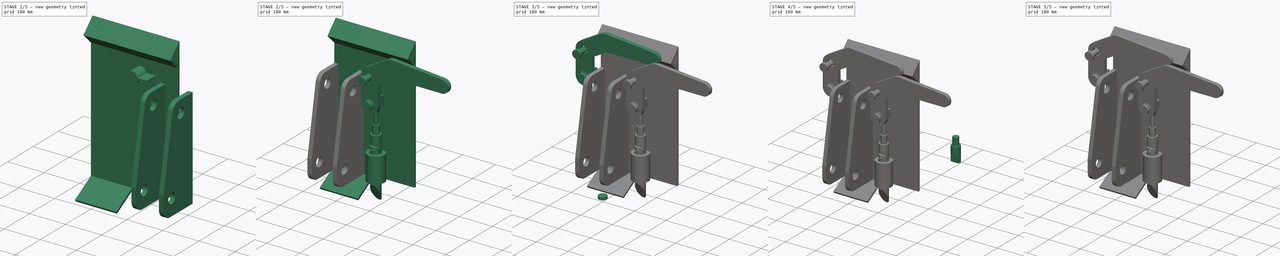
[diagram: build sequence overview — one tinted view per stage of 5, left to right]
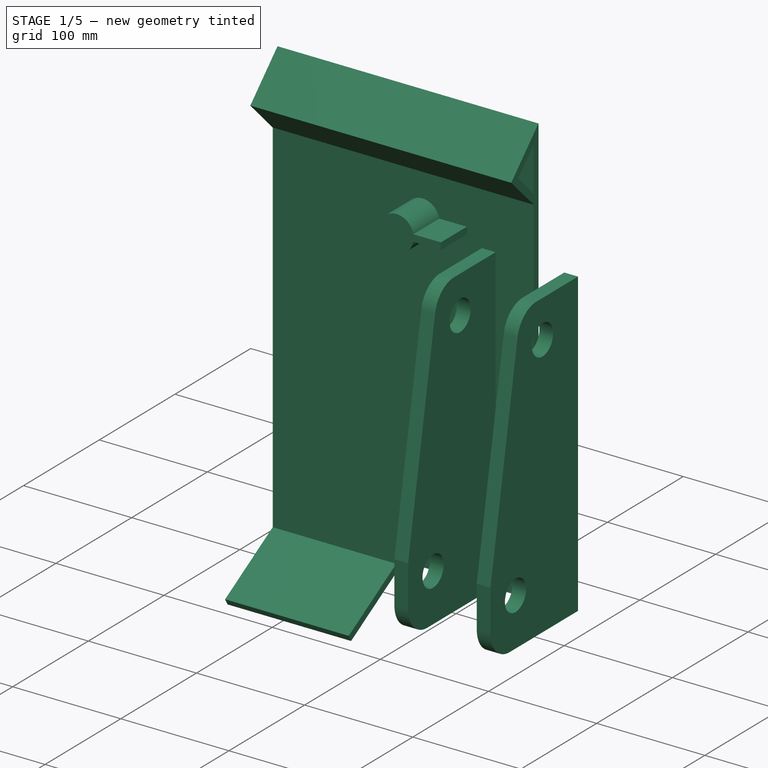
[diagram: stage 1 of 5 — iso view after this stage's code; geometry added in this stage tinted green]
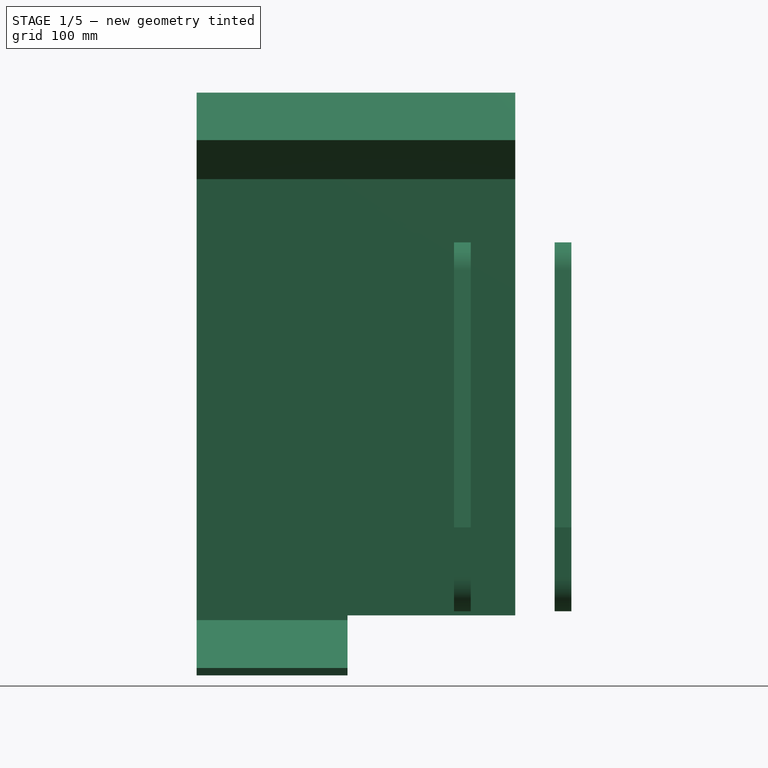
[diagram: stage 1 of 5 — front view after this stage's code; geometry added in this stage tinted green]
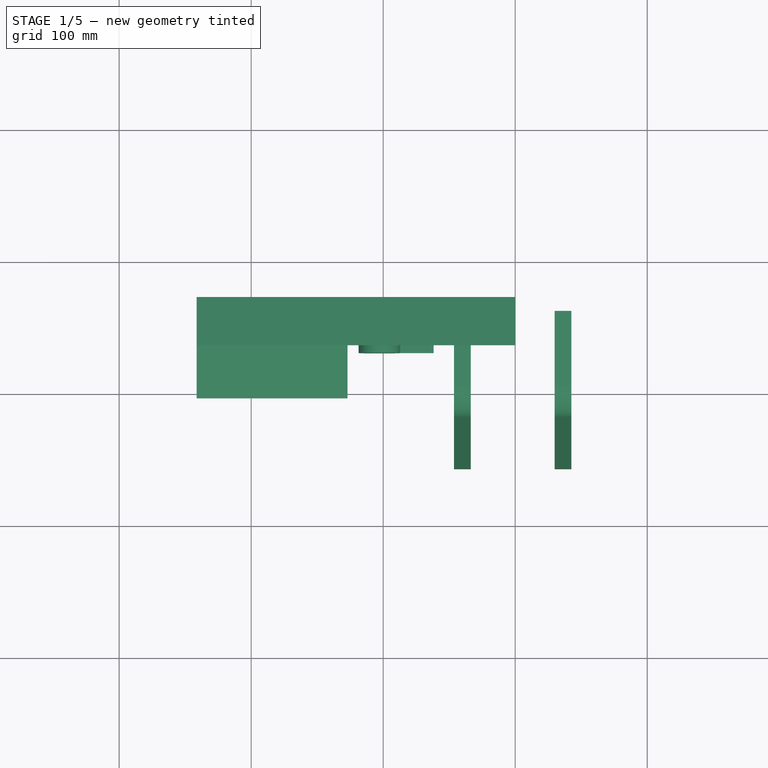
[diagram: stage 1 of 5 — top view after this stage's code; geometry added in this stage tinted green]
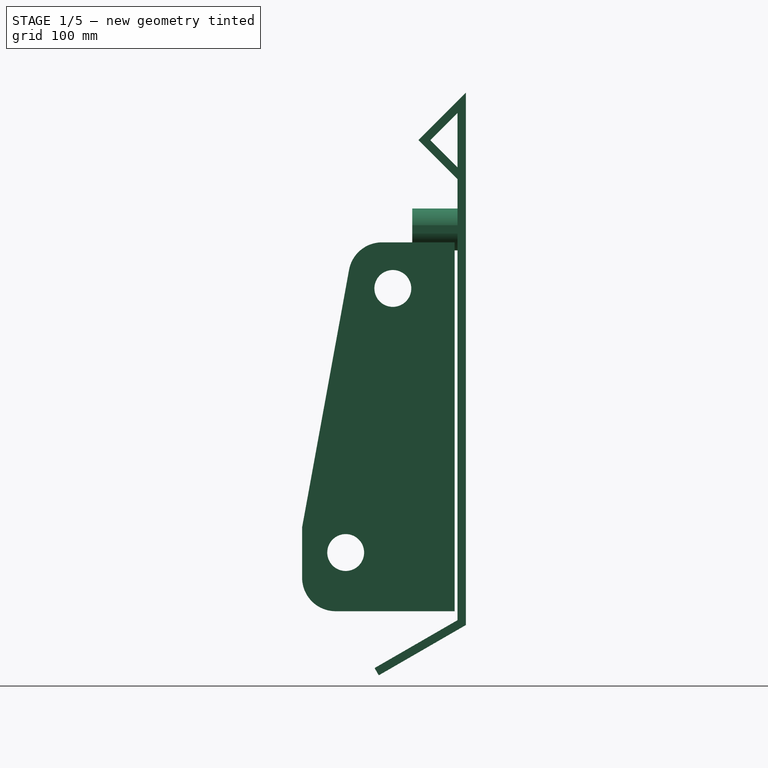
[diagram: stage 1 of 5 — right view after this stage's code; geometry added in this stage tinted green]
FCSTD DOCUMENT  (FreeCAD 0.16R6712 (Git))
Label: Bobcat QA Male side 8
License: All rights reserved
LicenseURL: http://en.wikipedia.org/wiki/All_rights_reserved
objects: Sketcher::SketchObject×20, PartDesign::Pocket×13, Part::Feature×11, Part::Cylinder×9, App::DocumentObjectGroup×8, Part::MultiFuse×7, Part::FeaturePython×7, PartDesign::Pad×6, Part::Box×2, PartDesign::Fillet×2, App::FeaturePython×1
note: 96 computed .brp shape members not serialized (recipe doc carries the construction recipe); baked Part::Feature solids carry a one-line shape summary decoded from their .brp

FEATURE [Sketcher::SketchObject] Sketch
  Placement = pos=(0,0,0) rot=(0.57735,0.57735,0.57735;2.0944rad)
  sketch-geometry (10):
    g0: LineSegment StartX=0 StartY=0 StartZ=0 EndX=65.9911 EndY=38.1 EndZ=0
    g1: LineSegment StartX=65.9911 StartY=38.1 StartZ=0 EndX=65.9911 EndY=441.325 EndZ=0
    g2: LineSegment StartX=65.9911 StartY=441.325 StartZ=0 EndX=30.0701 EndY=405.404 EndZ=0
    g3: LineSegment StartX=39.0504 StartY=405.404 StartZ=0 EndX=59.6411 EndY=425.995 EndZ=0
    g4: LineSegment StartX=59.6411 StartY=425.995 StartZ=0 EndX=59.6411 EndY=41.7662 EndZ=0
    g5: LineSegment StartX=59.6411 StartY=41.7662 StartZ=0 EndX=-3.175 EndY=5.49926 EndZ=0
    g6: LineSegment StartX=-3.175 StartY=5.49926 StartZ=0 EndX=0 EndY=0 EndZ=0
    g7: LineSegment StartX=30.0701 StartY=405.404 StartZ=0 EndX=59.6411 EndY=375.833 EndZ=0
    g8: LineSegment StartX=59.6411 StartY=375.833 StartZ=0 EndX=59.6411 EndY=384.813 EndZ=0
    g9: LineSegment StartX=59.6411 StartY=384.813 StartZ=0 EndX=39.0504 EndY=405.404 EndZ=0
  constraints (29):
    c: Coincident(g-1,g0)
    c: Coincident(g0,g1)
    c: Vertical(g1)
    c: Coincident(g1,g2)
    c: Coincident(g3,g4)
    c: Vertical(g4)
    c: Coincident(g4,g5)
    c: Coincident(g5,g6)
    c: Coincident(g6,g0)
    c: Coincident(g2,g7)
    c: Coincident(g7,g8)
    c: Vertical(g8)
    c: Coincident(g8,g9)
    c: Coincident(g9,g3)
    c: Angle(g0,g-2) = 1.0472
    c: Parallel(g5,g0)
    c: Perpendicular(g0,g6)
    c: Distance(g6) = 6.35
    c: Angle(g2,g1) = 0.785398
    c: Distance(g3,g1) = 6.35
    c: Parallel(g2,g3)
    c: Distance(g3,g2) = 6.35
    c: Parallel(g7,g9)
    c: Distance(g8,g7) = 6.35
    c: Distance(g1) = 403.225
    c: Distance(g0) = 76.2
    c: Angle(g7,g2) = 1.5708
    c: PointOnObject(g7,g4)
    c: Distance(g2) = 50.8
FEATURE [PartDesign::Pad] Pad
  Length = 241.3
  Length2 = 100
  Placement = pos=(0,0,0) rot=(0.57735,0.57735,0.57735;2.0944rad)
  Reversed = true
  Sketch = -> Sketch
  Type = 0
FEATURE [PartDesign::Pocket] Pocket
  Length = 81.2
  Placement = pos=(0,0,0) rot=(0.57735,0.57735,0.57735;2.0944rad)
  Sketch = -> Sketch001
  Type = 0
FEATURE [Sketcher::SketchObject] Sketch004
  ExternalGeometry = -> [Pocket]
  Placement = pos=(0,59.6411,0) rot=(0.57735,0.57735,-0.57735;2.0944rad)
  Support = -> Pocket [Face6]
  sketch-geometry (4):
    g0: ArcOfCircle CenterX=-337.733 CenterY=-102.743 CenterZ=0 NormalX=0 NormalY=0 NormalZ=1 Radius=15.875 StartAngle=1.77215 EndAngle=7.65262
    g1: LineSegment StartX=-340.908 StartY=-87.1887 StartZ=0 EndX=-340.908 EndY=-61.7887 EndZ=0
    g2: LineSegment StartX=-340.908 StartY=-61.7887 StartZ=0 EndX=-334.558 EndY=-61.7887 EndZ=0
    g3: LineSegment StartX=-334.558 StartY=-61.7887 StartZ=0 EndX=-334.558 EndY=-87.1887 EndZ=0
  constraints (13):
    c: Coincident(g1,g2)
    c: Coincident(g2,g3)
    c: Coincident(g3,g0)
    c: Vertical(g3)
    c: Coincident(g0,g1)
    c: Vertical(g1)
    c: Horizontal(g2)
    c: Radius(g0) = 15.875
    c: Distance(g2) = 6.35
    c: Equal(g3,g1)
    c: Distance(g3) = 25.4
    c: Distance(g0,g-3) = 38.1
    c: DistanceY(g-1,g0) = -102.743
FEATURE [PartDesign::Pad] Pad001
  Length = 34.29
  Length2 = 100
  Placement = pos=(0,0,0) rot=(0.57735,0.57735,0.57735;2.0944rad)
  Sketch = -> Sketch004
  Type = 0
FEATURE [Sketcher::SketchObject] Sketch021
  Placement = pos=(0,0,0) rot=(1,0,0;1.5708rad)
  sketch-geometry (7):
    g0: LineSegment StartX=0 StartY=0 StartZ=0 EndX=0 EndY=279.414 EndZ=0
    g1: LineSegment StartX=115.57 StartY=63.5 StartZ=0 EndX=115.57 EndY=0 EndZ=0
    g2: LineSegment StartX=115.57 StartY=0 StartZ=0 EndX=0 EndY=0 EndZ=0
    g3: Circle CenterX=46.847 CenterY=244.489 CenterZ=0 NormalX=0 NormalY=0 NormalZ=1 Radius=13.97
    g4: Circle CenterX=82.55 CenterY=44.45 CenterZ=0 NormalX=0 NormalY=0 NormalZ=1 Radius=13.97
    g5: LineSegment StartX=115.57 StartY=63.5 StartZ=0 EndX=76.2 EndY=279.414 EndZ=0
    g6: LineSegment StartX=76.2 StartY=279.414 StartZ=0 EndX=0 EndY=279.414 EndZ=0
  constraints (20):
    c: Coincident(g-1,g0)
    c: Vertical(g1)
    c: Coincident(g1,g2)
    c: Coincident(g2,g0)
    c: Horizontal(g2)
    c: Distance(g2) = 115.57
    c: Radius(g3) = 13.97
    c: DistanceX(g4) = 82.55
    c: Radius(g4) = 13.97
    c: DistanceY(g4) = 44.45
    c: Distance(g3,g4) = 203.2
    c: Coincident(g5,g6)
    c: Coincident(g6,g0)
    c: PointOnObject(g0,g-2)
    c: Horizontal(g6)
    c: Distance(g6) = 76.2
    c: Distance(g3,g6) = 34.925
    c: Coincident(g1,g5)
    c: Distance(g1) = 63.5
    c: Distance(g3,g0) = 46.847
FEATURE [PartDesign::Pad] Pad006
  Length = 12.7
  Length2 = 100
  Placement = pos=(0,0,0) rot=(1,0,0;1.5708rad)
  Sketch = -> Sketch021
  Type = 0
FEATURE [Part::FeaturePython] Clone003  label="Clone of Pad006"  # Draft clone (typed FeaturePython)
  Objects = -> [Pad006]
  Placement = pos=(377.028,99.6872,-218.392) rot=(1,0,0;1.5708rad)
  Scale = (1,1,1)
FEATURE [Part::FeaturePython] Clone004  label="Clone of Pad007"  # Draft clone (typed FeaturePython)
  Objects = -> [Pad006]
  Placement = pos=(377.028,23.4872,-218.392) rot=(1,0,0;1.5708rad)
  Scale = (1,1,1)
FEATURE [Part::MultiFuse] Fusion004003003
  Shapes = -> [Clone003,Clone004]
FEATURE [Part::FeaturePython] Clone006  label="Clone of Fusion004003003"  # Draft clone (typed FeaturePython)
  Objects = -> [Fusion004003003]
  Placement = pos=(-57.15,434.517,266.944) rot=(0,0,-1;1.5708rad)
  Scale = (1,1,1)
FEATURE [PartDesign::Fillet] Fillet002002
  Base = -> Clone006 [Edge32,Edge11,Edge23,Edge2]
  Placement = pos=(-57.15,434.517,266.944) rot=(0,0,-1;1.5708rad)
  Radius = 25.4
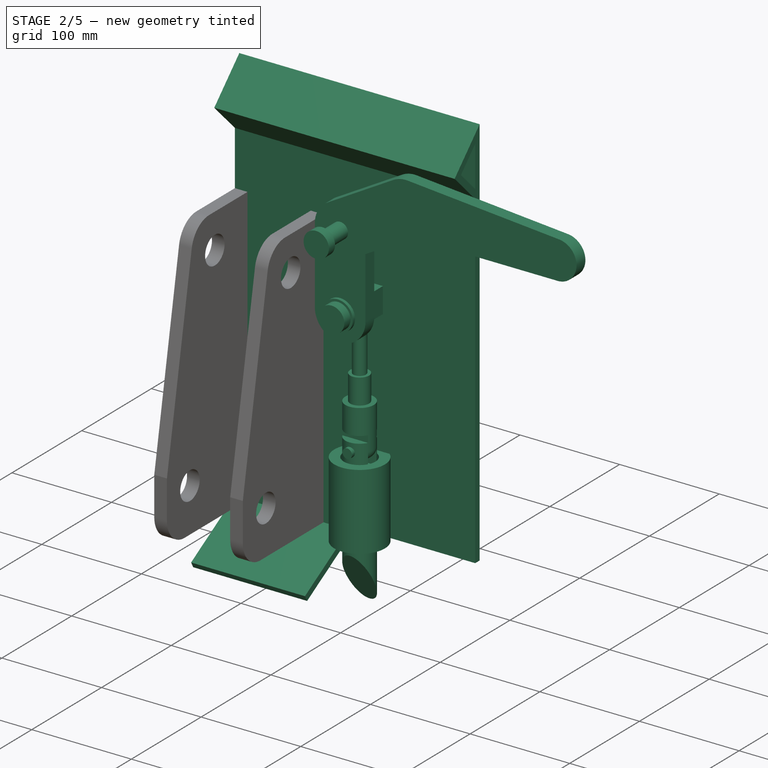
[diagram: stage 2 of 5 — iso view after this stage's code; geometry added in this stage tinted green]
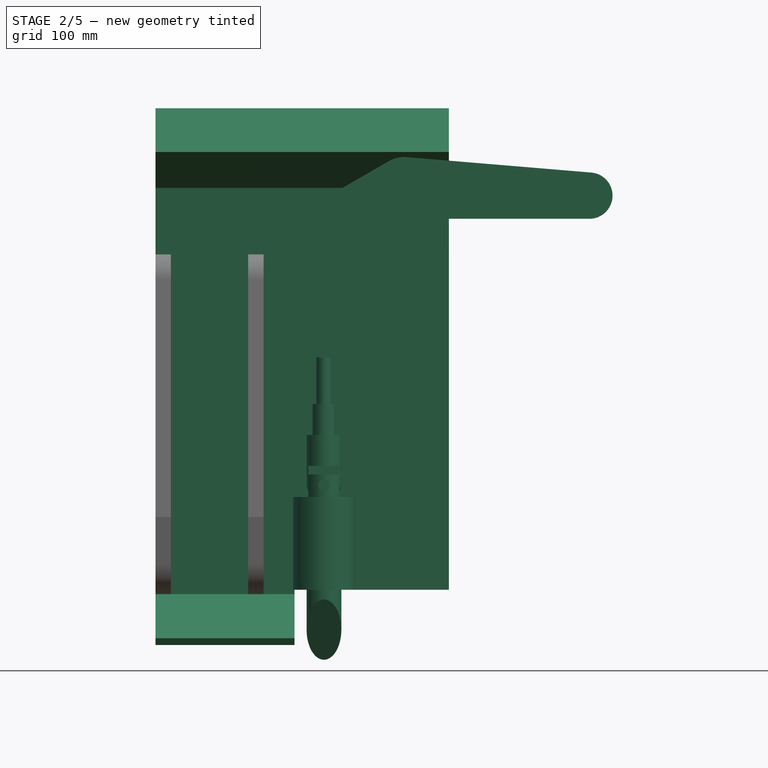
[diagram: stage 2 of 5 — front view after this stage's code; geometry added in this stage tinted green]
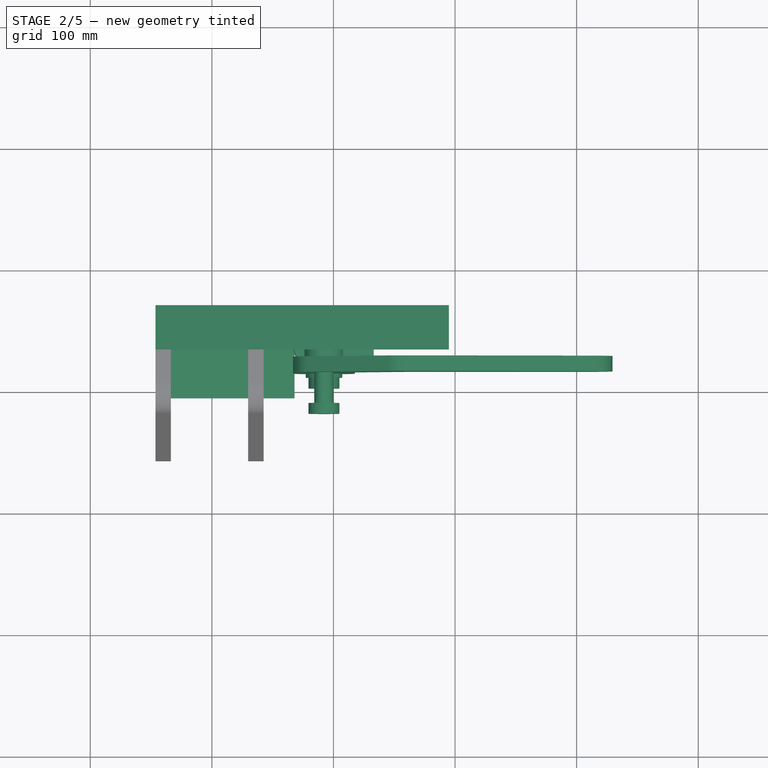
[diagram: stage 2 of 5 — top view after this stage's code; geometry added in this stage tinted green]
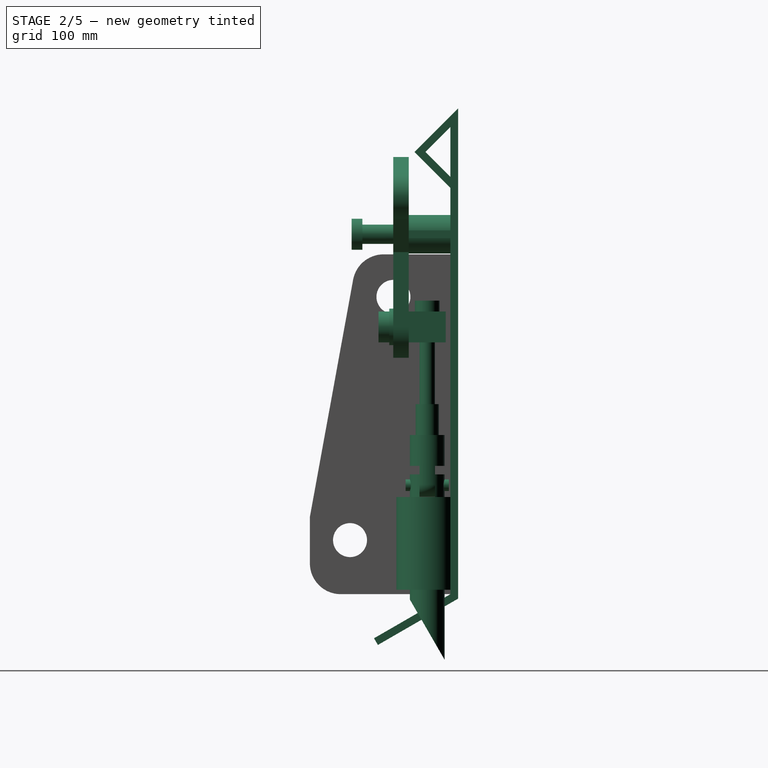
[diagram: stage 2 of 5 — right view after this stage's code; geometry added in this stage tinted green]
FEATURE [Sketcher::SketchObject] Sketch001
  Placement = pos=(0,65.9911,0) rot=(0.57735,0.57735,0.57735;4.18879rad)
  Support = -> Pad [Face7]
  sketch-geometry (4):
    g0: LineSegment StartX=45.433 StartY=0 StartZ=0 EndX=0 EndY=0 EndZ=0
    g1: LineSegment StartX=0 StartY=0 StartZ=0 EndX=0 EndY=-127 EndZ=0
    g2: LineSegment StartX=0 StartY=-127 StartZ=0 EndX=45.433 EndY=-127 EndZ=0
    g3: LineSegment StartX=45.433 StartY=-127 StartZ=0 EndX=45.433 EndY=0 EndZ=0
  constraints (12):
    c: Coincident(g0,g1)
    c: Coincident(g1,g2)
    c: Coincident(g2,g3)
    c: Coincident(g3,g0)
    c: Horizontal(g0)
    c: Horizontal(g2)
    c: Vertical(g1)
    c: Vertical(g3)
    c: PointOnObject(g1,g-2)
    c: Coincident(g0,g-1)
    c: Distance(g0) = 45.433
    c: Distance(g1) = 127
FEATURE [Part::Cylinder] Cylinder
  Angle = 360
  Height = 76.2
  Placement = pos=(-73.279,46.8215,91.9553) rot=(0,0,1;1.5708rad)
  Radius = 25.4
FEATURE [Sketcher::SketchObject] Sketch003
  Placement = pos=(-73.279,46.8215,168.155) rot=(0,0,1;1.5708rad)
  Support = -> Cylinder [Face2]
  sketch-geometry (1):
    g0: Circle CenterX=0 CenterY=0 CenterZ=0 NormalX=0 NormalY=0 NormalZ=1 Radius=15.875
  constraints (1):
    c: Radius(g0) = 15.875
FEATURE [PartDesign::Pocket] Pocket001
  Length = 76.2
  Placement = pos=(-73.279,46.8215,91.9553) rot=(0,0,1;1.5708rad)
  Sketch = -> Sketch003
  Type = 0
FEATURE [App::DocumentObjectGroup] Group006  label="Fasteners"
  Group = -> [Fusion002,Fusion,Cylinder004,Fusion003,Washer]
FEATURE [PartDesign::Pad] Pad005
  Length = 12.7
  Length2 = 100
  Placement = pos=(0,0,0) rot=(0.57735,0.57735,0.57735;2.0944rad)
  Sketch = -> Sketch005
  Type = 0
FEATURE [Sketcher::SketchObject] Sketch006
  ExternalGeometry = -> [Pad005]
  Placement = pos=(0,12.6511,0) rot=(0.57735,0.57735,-0.57735;2.0944rad)
  Support = -> Pad005 [Face21]
  sketch-geometry (1):
    g0: Circle CenterX=-337.733 CenterY=-102.743 CenterZ=0 NormalX=0 NormalY=0 NormalZ=1 Radius=7.9375
  constraints (2):
    c: Radius(g0) = 7.9375
    c: Coincident(g0,g-3)
FEATURE [PartDesign::Pocket] Pocket014
  Length = 38.1
  Placement = pos=(0,0,0) rot=(0.57735,0.57735,0.57735;2.0944rad)
  Sketch = -> Sketch006
  Type = 0
FEATURE [App::DocumentObjectGroup] Group001  label="QA male plate"
  Group = -> [Pad,Cylinder,Pocket,Pad001,Sketch019,Pad005,Pocket001,Pocket014]
FEATURE [Part::FeaturePython] Clone  label="Clone of Pocket001"  # Draft clone (typed FeaturePython)
  Objects = -> [Pocket001]
  Placement = pos=(-159.893,38.4395,52.2189) rot=(0,0,1;1.5708rad)
  Scale = (1,1,1)
FEATURE [Part::Feature] Pocket003001  label="Pocket015"
  Placement = pos=(-460.982,31.5815,72.096) rot=(1,0,0;1.5708rad)
  shape: bbox 262.7 x 12.7 x 165.1 mm, 14 faces (baked)
FEATURE [Part::Feature] Pocket011001  label="Pocket016"
  Placement = pos=(-87.5665,32.534,34.1703) rot=(0,0,1;0rad)
  shape: bbox 28.58 x 28.58 x 152.4 mm, 12 faces (baked)
FEATURE [Part::Feature] Pocket013001  label="Pocket017"
  Placement = pos=(-85.979,31.5815,295.155) rot=(0,0,1;0rad)
  shape: bbox 25.4 x 43.18 x 25.4 mm, 11 faces (baked)
FEATURE [Part::Feature] Fillet001
  Placement = pos=(-73.279,46.8215,168.155) rot=(0,0,1;0rad)
  shape: bbox 28.58 x 28.58 x 76.2 mm, 17 faces (baked)
FEATURE [Part::Feature] Fusion002001  label="Shoulder bolt001"
  Placement = pos=(-73.279,-19.2185,384.055) rot=(1,0,0;1.5708rad)
  shape: bbox 25.4 x 72.39 x 25.4 mm, 5 faces (baked)
FEATURE [Part::Feature] Cylinder004001  label="Spring pin001"
  Placement = pos=(-73.279,64.6015,177.68) rot=(1,0,0;1.5708rad)
  shape: bbox 9.525 x 35.56 x 9.525 mm, 3 faces (baked)
FEATURE [Part::Feature] Fusion003001  label="Pivot 1 bolt001"
  Placement = pos=(-73.279,19.3915,307.855) rot=(0,0.707107,0.707107;3.14159rad)
  shape: bbox 25.4 x 21.59 x 25.4 mm, 5 faces (baked)
FEATURE [Part::Feature] Washer001  label="M16-Washer001"
  Placement = pos=(-73.279,18.8815,307.855) rot=(1,0,0;1.5708rad)
  shape: bbox 30 x 3.3 x 30 mm, 4 faces (baked)
FEATURE [Part::Feature] Fusion004002  label="Spring bolt001"
  Placement = pos=(-73.279,46.8215,320.555) rot=(0,0,1;0rad)
  shape: bbox 20.32 x 20.32 x 85.09 mm, 5 faces (baked)
FEATURE [Part::Feature] Fusion004003001  label="Fusion004004"
  Placement = pos=(-86.614,-8.382,-39.5364) rot=(0,0,1;0rad)
  shape: bbox 262.7 x 80.01 x 413.4 mm, 71 faces, 2 solids (baked)
FEATURE [Part::FeaturePython] Clone002  label="Clone of Pocket014"  # Draft clone (typed FeaturePython)
  Objects = -> [Pocket014]
  Placement = pos=(-57.15,-2.15164,6.78592) rot=(0.57735,0.57735,0.57735;2.0944rad)
  Scale = (1,1,1)
FEATURE [Part::MultiFuse] Fusion004003002  label="Fusion004"
  Shapes = -> [Clone002,Fusion004003001,Clone]
FEATURE [Part::FeaturePython] Clone005  label="Clone of Fusion004"  # Draft clone (typed FeaturePython)
  Objects = -> [Fusion004003002]
  Placement = pos=(252.087,0,0) rot=(0,0,1;0rad)
  Scale = (1,1,1)
FEATURE [Part::MultiFuse] Fusion004003004
  Shapes = -> [Fillet002002,Clone005]
FEATURE [Part::Feature] Fusion004003004001  label="MQA"
  Placement = pos=(-533.4,0,0) rot=(0,0,1;0rad)
  shape: bbox 375.9 x 121.9 x 453.5 mm, 114 faces (baked)
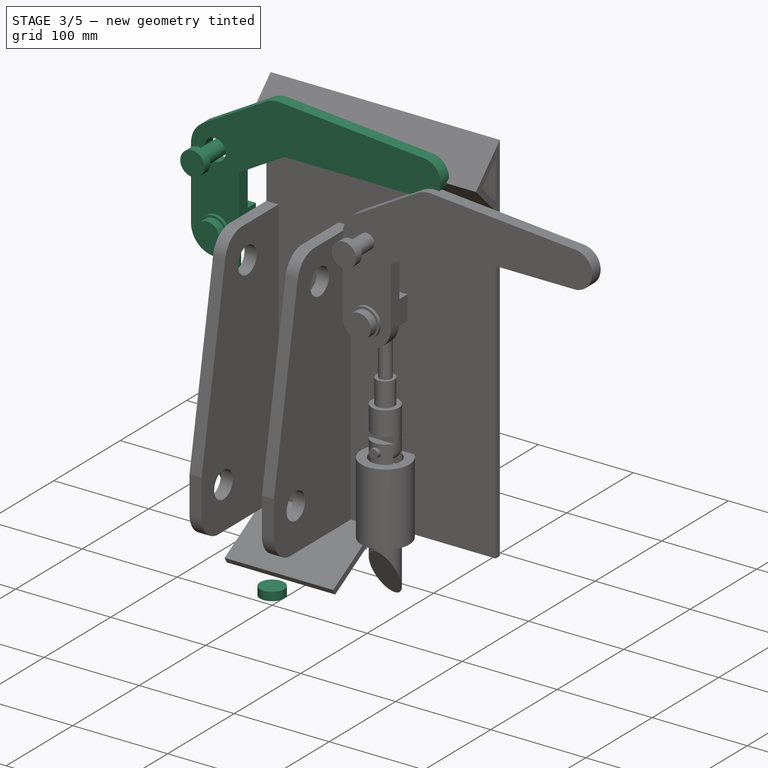
[diagram: stage 3 of 5 — iso view after this stage's code; geometry added in this stage tinted green]
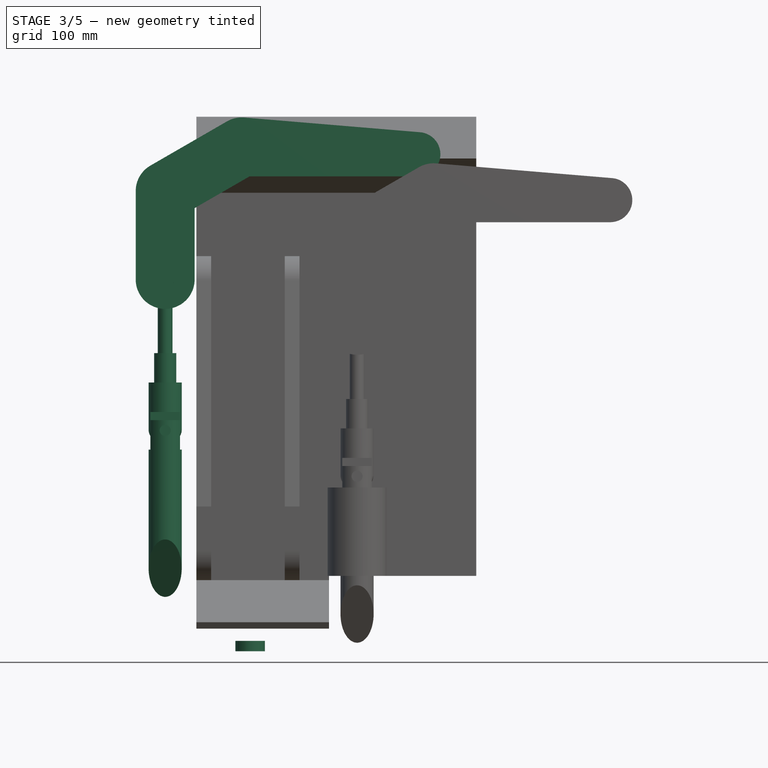
[diagram: stage 3 of 5 — front view after this stage's code; geometry added in this stage tinted green]
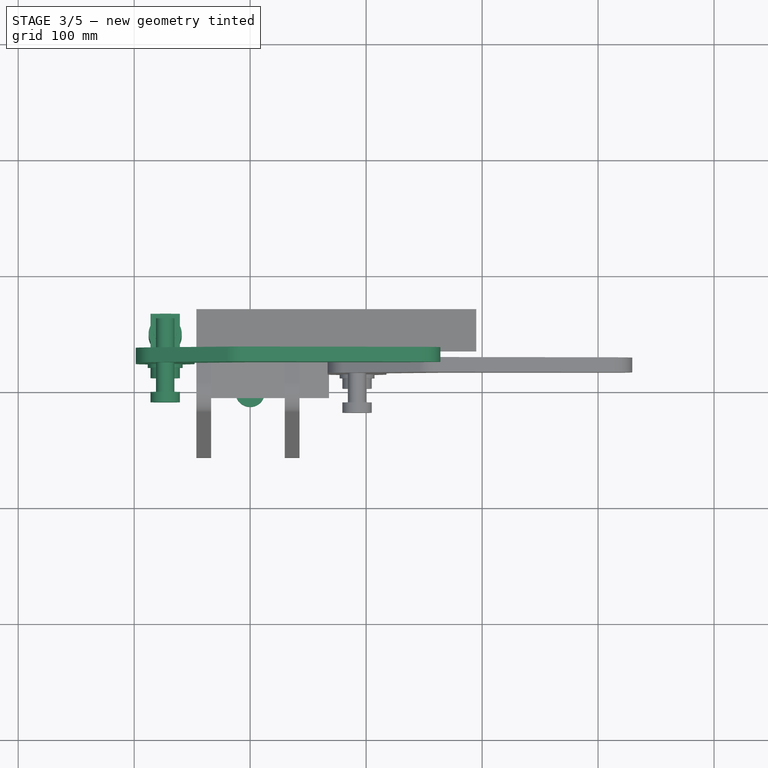
[diagram: stage 3 of 5 — top view after this stage's code; geometry added in this stage tinted green]
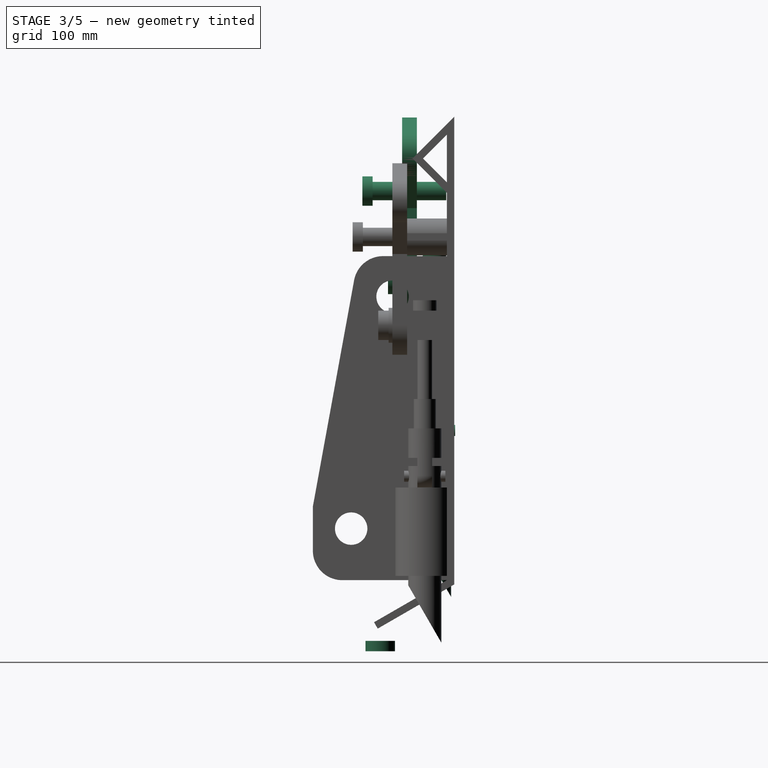
[diagram: stage 3 of 5 — right view after this stage's code; geometry added in this stage tinted green]
FEATURE [App::DocumentObjectGroup] Group  label="Hand Lever"
  Group = -> [Pad003,Pocket003]
FEATURE [Part::Box] Box  label="Cube"
  Height = 25.4
  Length = 25.4
  Placement = pos=(199.004,71.2268,181.94) rot=(0,0,1;0rad)
  Width = 30.48
FEATURE [Sketcher::SketchObject] Sketch010
  Placement = pos=(199.004,71.2268,181.94) rot=(1,0,0;1.5708rad)
  Support = -> Box [Face3]
  sketch-geometry (1):
    g0: Circle CenterX=12.7 CenterY=12.7 CenterZ=0 NormalX=0 NormalY=0 NormalZ=1 Radius=11.1125
  constraints (3):
    c: DistanceY(g-1,g0) = 12.7
    c: DistanceX(g-2,g0) = 12.7
    c: Radius(g0) = 11.1125
FEATURE [PartDesign::Pad] Pad004
  Length = 12.7
  Length2 = 100
  Placement = pos=(199.004,71.2268,181.94) rot=(0,0,1;0rad)
  Sketch = -> Sketch010
  Type = 0
FEATURE [Sketcher::SketchObject] Sketch011
  Placement = pos=(199.004,71.2268,207.34) rot=(0,0,1;0rad)
  Support = -> Pad004 [Face3]
  sketch-geometry (1):
    g0: Circle CenterX=12.7 CenterY=15.24 CenterZ=0 NormalX=0 NormalY=0 NormalZ=1 Radius=6.35
  constraints (3):
    c: DistanceY(g-1,g0) = 15.24
    c: DistanceX(g-2,g0) = 12.7
    c: Radius(g0) = 6.35
FEATURE [PartDesign::Pocket] Pocket004
  Length = 25.4
  Placement = pos=(-85.979,11.1271,292.581) rot=(0,0,1;0rad)
  Sketch = -> Sketch011
  Type = 0
FEATURE [Part::Cylinder] Cylinder006
  Angle = 360
  Height = 8.89
  Placement = pos=(0,0,-12.7) rot=(0,0,1;0rad)
  Radius = 12.7
FEATURE [Sketcher::SketchObject] Sketch020
  Placement = pos=(-85.979,18.8815,295.156) rot=(1,0,0;1.5708rad)
  Support = -> Pocket004 [Face9]
  sketch-geometry (1):
    g0: Circle CenterX=12.7 CenterY=12.6992 CenterZ=0 NormalX=0 NormalY=0 NormalZ=1 Radius=7.9375
  constraints (1):
    c: Radius(g0) = 7.9375
FEATURE [PartDesign::Pocket] Pocket013
  Length = 12.7
  Placement = pos=(-85.979,31.5815,295.155) rot=(0,0,1;0rad)
  Sketch = -> Sketch020
  Type = 0
FEATURE [App::DocumentObjectGroup] Group004  label="Pivot 1"
  Group = -> [Box,Pad004,Pocket004,Pocket013]
FEATURE [App::DocumentObjectGroup] Group002  label="Pin group"
  Group = -> [Group003,Group004,Group005]
FEATURE [Part::Cylinder] Cylinder007
  Angle = 360
  Height = 12.7
  Placement = pos=(0,0,-3.81) rot=(0,0,1;0rad)
  Radius = 7.9375
FEATURE [Part::Cylinder] Cylinder008
  Angle = 360
  Height = 8.89
  Placement = pos=(0,0,-12.7) rot=(0,0,1;0rad)
  Radius = 12.7
FEATURE [Part::MultiFuse] Fusion003  label="Pivot 1 bolt"
  Placement = pos=(-73.279,19.3915,307.855) rot=(0,0.707107,0.707107;3.14159rad)
  Shapes = -> [Cylinder007,Cylinder008]
FEATURE [Part::FeaturePython] Washer  label="M16-Washer"  # Fasteners workbench fastener (typed FeaturePython)
  Placement = pos=(-73.279,18.8815,307.855) rot=(1,0,0;1.5708rad)
  diameter = 11
  invert = false
  matchOuter = false
  offset = 0
  type = 0
FEATURE [App::DocumentObjectGroup] Group007  label="Arm connector"
  Group = -> [Pad006,Fusion004003003]
FEATURE [Part::MultiFuse] Fusion004003  label="Fusion003"
  Shapes = -> [Pocket003001,Pocket013001,Fusion002001,Cylinder004001,Fillet001,Fusion004002,Pocket011001,Washer001,Fusion003001]
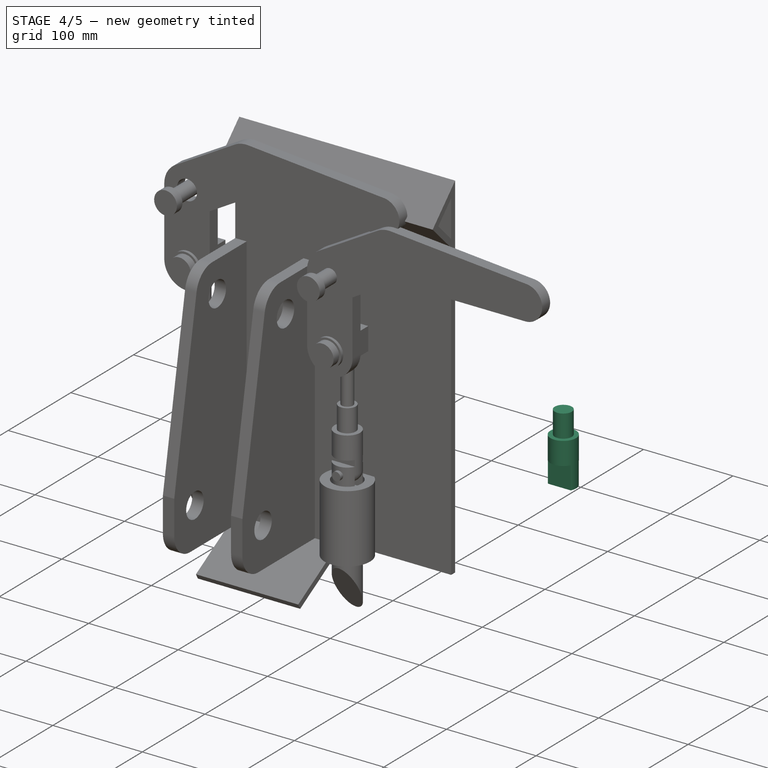
[diagram: stage 4 of 5 — iso view after this stage's code; geometry added in this stage tinted green]
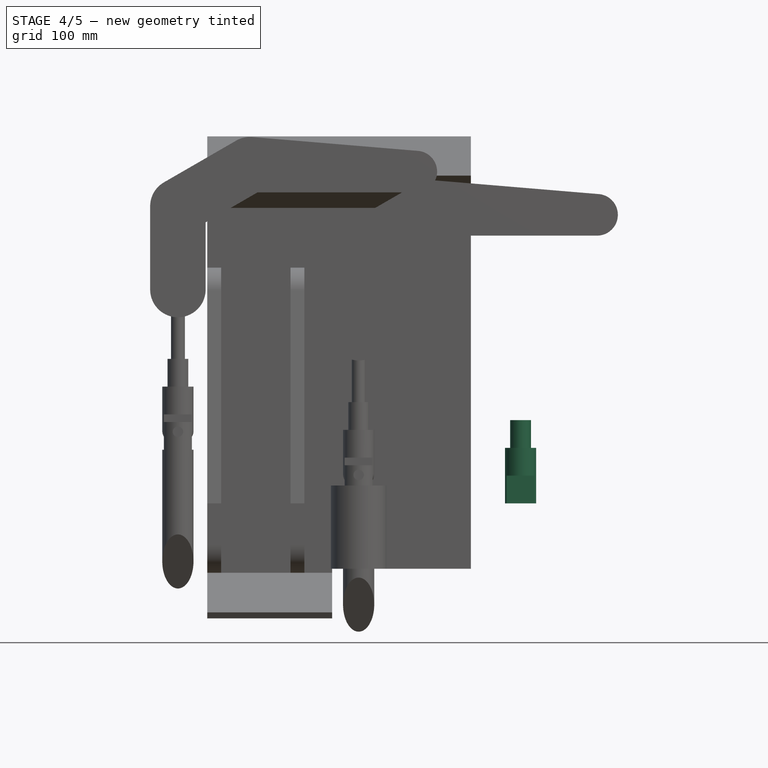
[diagram: stage 4 of 5 — front view after this stage's code; geometry added in this stage tinted green]
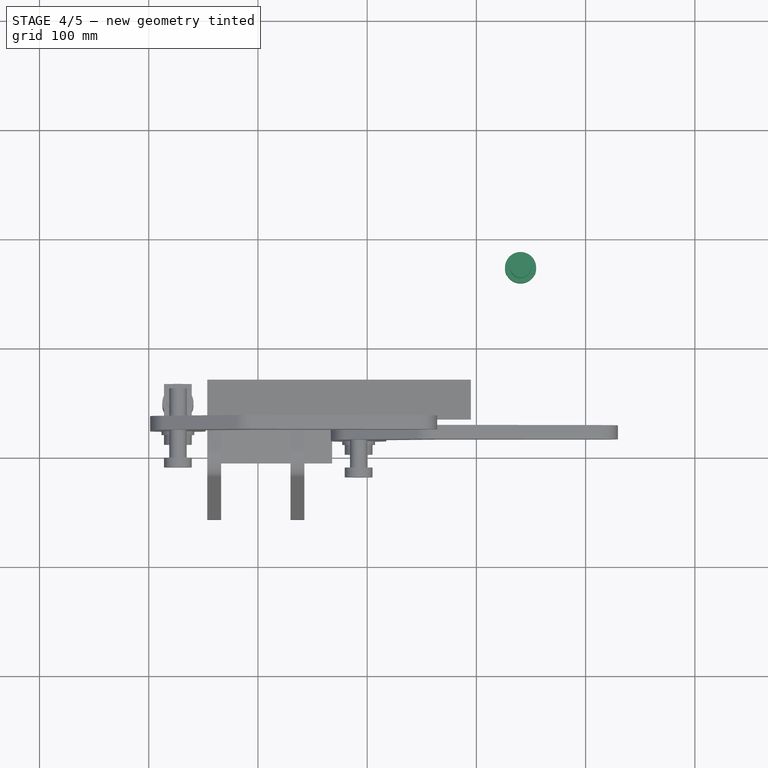
[diagram: stage 4 of 5 — top view after this stage's code; geometry added in this stage tinted green]
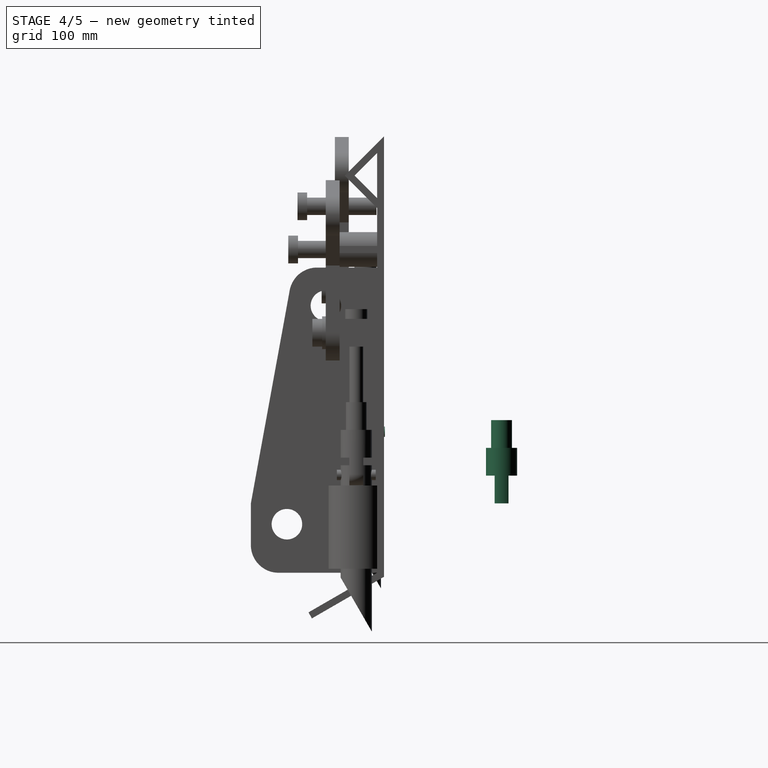
[diagram: stage 4 of 5 — right view after this stage's code; geometry added in this stage tinted green]
FEATURE [Part::Cylinder] Cylinder001
  Angle = 360
  Height = 76.2
  Placement = pos=(240.443,171.452,112.065) rot=(0,0,1;0rad)
  Radius = 14.2875
FEATURE [Sketcher::SketchObject] Sketch012
  Placement = pos=(240.443,171.452,112.065) rot=(1,0,0;3.14159rad)
  Support = -> Cylinder001 [Face3]
  sketch-geometry (8):
    g0: LineSegment StartX=-19.05 StartY=6.35 StartZ=0 EndX=19.05 EndY=6.35 EndZ=0
    g1: LineSegment StartX=19.05 StartY=6.35 StartZ=0 EndX=19.05 EndY=-6.35 EndZ=0
    g2: LineSegment StartX=19.05 StartY=-6.35 StartZ=0 EndX=-19.05 EndY=-6.35 EndZ=0
    g3: LineSegment StartX=-19.05 StartY=-6.35 StartZ=0 EndX=-19.05 EndY=6.35 EndZ=0
    g4: LineSegment StartX=-25.4 StartY=19.05 StartZ=0 EndX=25.4 EndY=19.05 EndZ=0
    g5: LineSegment StartX=25.4 StartY=19.05 StartZ=0 EndX=25.4 EndY=-19.05 EndZ=0
    g6: LineSegment StartX=25.4 StartY=-19.05 StartZ=0 EndX=-25.4 EndY=-19.05 EndZ=0
    g7: LineSegment StartX=-25.4 StartY=-19.05 StartZ=0 EndX=-25.4 EndY=19.05 EndZ=0
  constraints (16):
    c: Coincident(g0,g1)
    c: Coincident(g1,g2)
    c: Coincident(g2,g3)
    c: Coincident(g3,g0)
    c: Horizontal(g0)
    c: Horizontal(g2)
    c: Vertical(g1)
    c: Vertical(g3)
    c: Coincident(g4,g5)
    c: Coincident(g5,g6)
    c: Coincident(g6,g7)
    c: Coincident(g7,g4)
    c: Horizontal(g4)
    c: Horizontal(g6)
    c: Vertical(g5)
    c: Vertical(g7)
FEATURE [PartDesign::Pocket] Pocket005
  Length = 25.4
  Placement = pos=(240.443,171.452,112.065) rot=(0,0,1;0rad)
  Sketch = -> Sketch012
  Type = 0
FEATURE [Sketcher::SketchObject] Sketch013
  Placement = pos=(240.443,171.452,188.265) rot=(0,0,1;0rad)
  Support = -> Pocket005 [Face7]
  sketch-geometry (2):
    g0: Circle CenterX=0 CenterY=0 CenterZ=0 NormalX=0 NormalY=0 NormalZ=1 Radius=9.525
    g1: Circle CenterX=0 CenterY=0 CenterZ=0 NormalX=0 NormalY=0 NormalZ=1 Radius=19.05
  constraints (2):
    c: Coincident(g0,g-1)
    c: Coincident(g1,g-1)
FEATURE [PartDesign::Pocket] Pocket006
  Length = 25.4
  Placement = pos=(240.443,171.452,112.065) rot=(0,0,1;0rad)
  Sketch = -> Sketch013
  Type = 0
FEATURE [App::DocumentObjectGroup] Group003  label="Pin (Wedge)"
  Group = -> [Box001,Pocket008,Pocket009,Pocket010,Pocket011]
FEATURE [App::DocumentObjectGroup] Group005  label="Pivot 2"
  Group = -> [Cylinder001,Pocket005,Pocket006,Pocket007,Fillet]
FEATURE [Part::Cylinder] Cylinder002
  Angle = 360
  Height = 76.2
  Placement = pos=(0,0,-76.2) rot=(0,0,1;0rad)
  Radius = 6.35
FEATURE [Part::Cylinder] Cylinder003
  Angle = 360
  Height = 8.89
  Radius = 10.16
FEATURE [Part::MultiFuse] Fusion  label="Spring bolt"
  Placement = pos=(-73.279,46.8215,320.555) rot=(0,0,1;0rad)
  Shapes = -> [Cylinder002,Cylinder003]
FEATURE [Sketcher::SketchObject] Sketch019
  Placement = pos=(0,17.4771,47.3393) rot=(1,0,0;1.5708rad)
  sketch-geometry (1):
    g0: Circle CenterX=-73.279 CenterY=334.141 CenterZ=0 NormalX=0 NormalY=0 NormalZ=1 Radius=26.7803
FEATURE [Part::Cylinder] Cylinder004  label="Spring pin"
  Angle = 360
  Height = 35.56
  Placement = pos=(-73.279,64.6015,177.68) rot=(1,0,0;1.5708rad)
  Radius = 4.7625
FEATURE [Part::Cylinder] Cylinder005
  Angle = 360
  Height = 63.5
  Placement = pos=(0,0,-76.2) rot=(0,0,1;0rad)
  Radius = 7.9375
FEATURE [App::FeaturePython] circularEdgeConstraint07  # a2plus constraint (typed FeaturePython)
  Object1 = Cylinder006
  Object2 = Cylinder005
  SubElement1 = Edge3
  SubElement2 = Edge1
  Type = circularEdge
  directionConstraint = 0
  lockRotation = false
  offset = 0
FEATURE [Part::MultiFuse] Fusion002  label="Shoulder bolt"
  Placement = pos=(-73.279,-19.2185,384.055) rot=(1,0,0;1.5708rad)
  Shapes = -> [Cylinder005,Cylinder006,circularEdgeConstraint07]
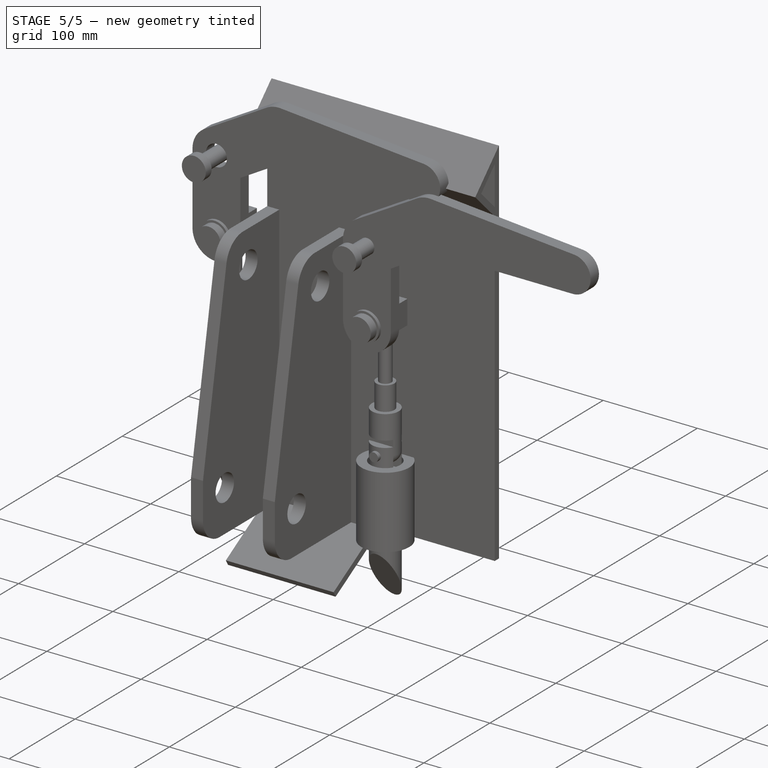
[diagram: stage 5 of 5 — iso view after this stage's code; geometry added in this stage tinted green]
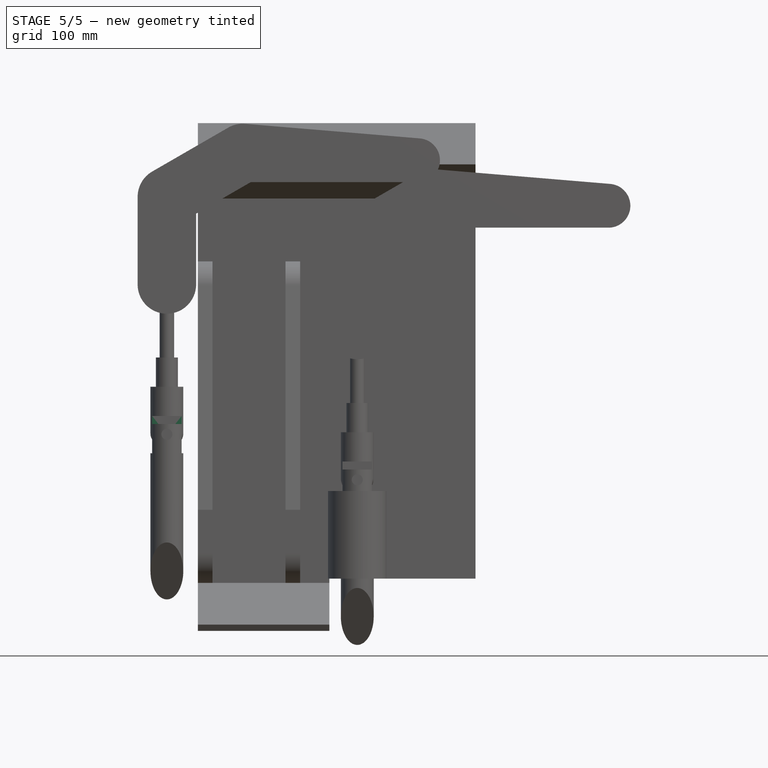
[diagram: stage 5 of 5 — front view after this stage's code; geometry added in this stage tinted green]
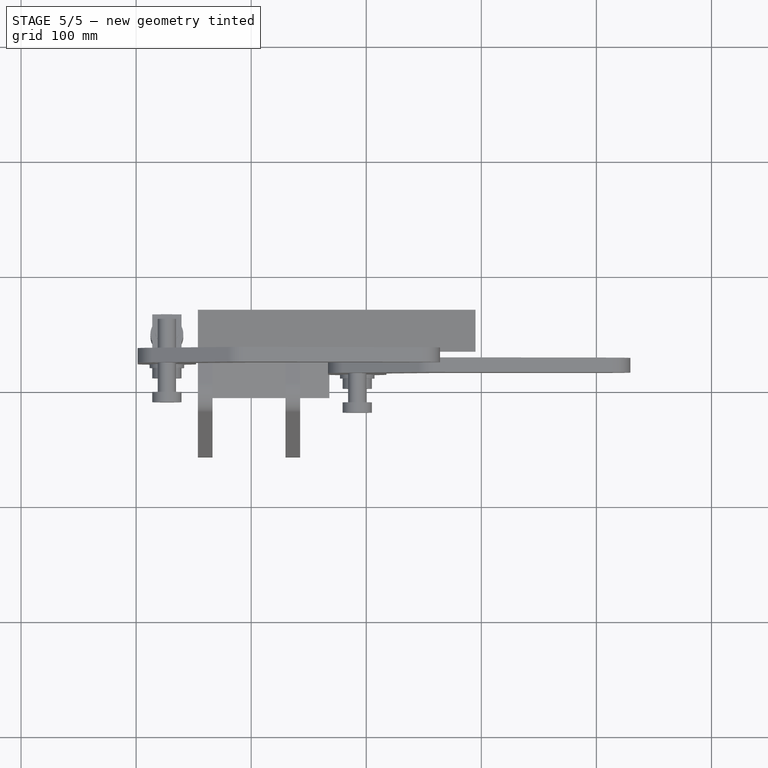
[diagram: stage 5 of 5 — top view after this stage's code; geometry added in this stage tinted green]
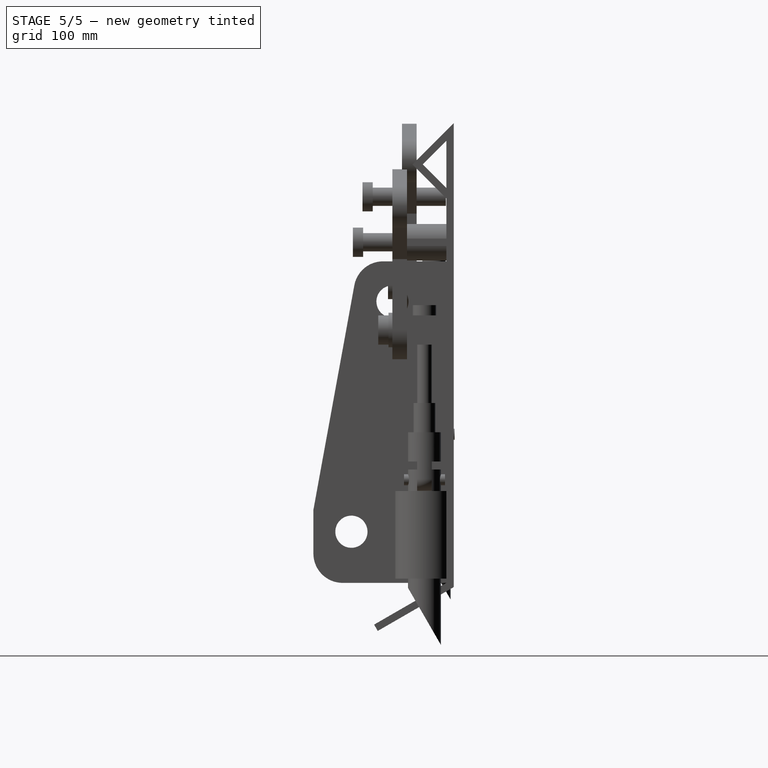
[diagram: stage 5 of 5 — right view after this stage's code; geometry added in this stage tinted green]
FEATURE [Sketcher::SketchObject] Sketch005
  ExternalGeometry = -> [Pad001]
  Placement = pos=(0,25.3511,0) rot=(0.57735,0.57735,-0.57735;2.0944rad)
  Support = -> Pad001 [Face19]
  sketch-geometry (1):
    g0: Circle CenterX=-337.733 CenterY=-102.743 CenterZ=0 NormalX=0 NormalY=0 NormalZ=1 Radius=11.1125
  constraints (2):
    c: Radius(g0) = 11.1125
    c: Coincident(g0,g-3)
FEATURE [Sketcher::SketchObject] Sketch007
  Placement = pos=(-298.737,-0.556864,22.1816) rot=(1,0,0;1.5708rad)
  sketch-geometry (19):
    g0: ArcOfCircle [constr] CenterX=453.695 CenterY=350.059 CenterZ=0 NormalX=0 NormalY=0 NormalZ=1 Radius=25.4 StartAngle=1.48744 EndAngle=4.71239
    g1: ArcOfCircle CenterX=605.962 CenterY=343.709 CenterZ=0 NormalX=0 NormalY=0 NormalZ=1 Radius=19.05 StartAngle=4.71239 EndAngle=7.77062
    g2: LineSegment [constr] StartX=453.695 StartY=324.659 StartZ=0 EndX=605.962 EndY=324.659 EndZ=0
    g3: LineSegment StartX=455.809 StartY=375.371 StartZ=0 EndX=607.548 EndY=362.693 EndZ=0
    g4: ArcOfCircle [constr] CenterX=453.695 CenterY=350.059 CenterZ=0 NormalX=0 NormalY=0 NormalZ=1 Radius=25.4 StartAngle=5.23599 EndAngle=8.37758
    g5: ArcOfCircle [constr] CenterX=387.703 CenterY=311.959 CenterZ=0 NormalX=0 NormalY=0 NormalZ=1 Radius=25.4 StartAngle=2.0944 EndAngle=5.23599
    g6: LineSegment StartX=440.995 StartY=372.056 StartZ=0 EndX=375.003 EndY=333.956 EndZ=0
    g7: LineSegment [constr] StartX=466.395 StartY=328.062 StartZ=0 EndX=400.403 EndY=289.962 EndZ=0
    g8: ArcOfCircle [constr] CenterX=387.703 CenterY=311.959 CenterZ=0 NormalX=0 NormalY=0 NormalZ=1 Radius=25.4 StartAngle=1e-12 EndAngle=3.14159
    g9: ArcOfCircle CenterX=387.703 CenterY=235.759 CenterZ=0 NormalX=0 NormalY=0 NormalZ=1 Radius=25.4 StartAngle=3.14159 EndAngle=6.28319
    g10: LineSegment StartX=362.303 StartY=311.959 StartZ=0 EndX=362.303 EndY=235.759 EndZ=0
    g11: LineSegment [constr] StartX=413.103 StartY=311.959 StartZ=0 EndX=413.103 EndY=235.759 EndZ=0
    g12: GeomPoint [constr] X=460.5 Y=324.659 Z=0
    g13: GeomPoint [constr] X=413.103 Y=297.295 Z=0
    g14: LineSegment StartX=413.103 StartY=235.759 StartZ=0 EndX=413.103 EndY=297.295 EndZ=0
    g15: LineSegment StartX=413.103 StartY=297.295 StartZ=0 EndX=460.5 EndY=324.659 EndZ=0
    g16: LineSegment StartX=460.5 StartY=324.659 StartZ=0 EndX=605.962 EndY=324.659 EndZ=0
    g17: ArcOfCircle CenterX=387.703 CenterY=311.959 CenterZ=0 NormalX=0 NormalY=0 NormalZ=1 Radius=25.4 StartAngle=2.0944 EndAngle=3.14159
    g18: ArcOfCircle CenterX=453.695 CenterY=350.059 CenterZ=0 NormalX=0 NormalY=0 NormalZ=1 Radius=25.4 StartAngle=1.48744 EndAngle=2.0944
  constraints (42):
    c: Tangent(g0,g3) = 1.5708
    c: Tangent(g0,g2) = -1.5708
    c: Tangent(g2,g1) = -1.5708
    c: Tangent(g3,g1) = 1.5708
    c: Horizontal(g2)
    c: Tangent(g4,g7) = 1.5708
    c: Tangent(g4,g6) = -1.5708
    c: Tangent(g6,g5) = -1.5708
    c: Tangent(g7,g5) = 1.5708
    c: Tangent(g8,g11) = 1.5708
    c: Tangent(g8,g10) = -1.5708
    c: Tangent(g10,g9) = -1.5708
    c: Tangent(g11,g9) = 1.5708
    c: Coincident(g0,g4)
    c: Coincident(g8,g5)
    c: Radius(g1) = 19.05
    c: Radius(g9) = 25.4
    c: Distance(g5,g9) = 76.2
    c: Distance(g0,g1) = 152.4
    c: Radius(g4) = 25.4
    c: Equal(g4,g8)
    c: Distance(g5,g0) = 76.2
    c: DistanceX(g1) = 605.962
    c: DistanceY(g1) = 343.709
    c: Angle(g7,g2) = 2.61799
    c: Angle(g11,g7) = 2.0944
    c: PointOnObject(g12,g2)
    c: PointOnObject(g12,g7)
    c: PointOnObject(g13,g7)
    c: PointOnObject(g13,g11)
    c: Tangent(g9,g14) = -1.5708
    c: Coincident(g14,g15)
    c: Coincident(g15,g12)
    c: Coincident(g15,g16)
    c: Coincident(g16,g1)
    c: Coincident(g17,g5)
    c: Coincident(g17,g5)
    c: Coincident(g17,g8)
    c: Coincident(g18,g0)
    c: Coincident(g18,g4)
    c: Coincident(g18,g0)
    c: Coincident(g13,g14)
FEATURE [PartDesign::Pad] Pad003
  Length = 12.7
  Length2 = 100
  Placement = pos=(-298.737,-0.556864,22.1816) rot=(1,0,0;1.5708rad)
  Sketch = -> Sketch007
  Type = 0
FEATURE [Sketcher::SketchObject] Sketch008
  ExternalGeometry = -> [Pad003]
  Placement = pos=(-298.737,-13.2569,22.1816) rot=(1,0,0;1.5708rad)
  Support = -> Pad003 [Face12]
  sketch-geometry (2):
    g0: Circle CenterX=387.703 CenterY=311.959 CenterZ=0 NormalX=0 NormalY=0 NormalZ=1 Radius=11.1125
    g1: Circle CenterX=387.703 CenterY=235.759 CenterZ=0 NormalX=0 NormalY=0 NormalZ=1 Radius=12.7
  constraints (4):
    c: Coincident(g0,g-3)
    c: Coincident(g1,g-4)
    c: Radius(g0) = 11.1125
    c: Radius(g1) = 12.7
FEATURE [PartDesign::Pocket] Pocket003
  Length = 12.7
  Placement = pos=(-460.982,31.5815,72.096) rot=(1,0,0;1.5708rad)
  Sketch = -> Sketch008
  Type = 0
FEATURE [Sketcher::SketchObject] Sketch014
  Placement = pos=(240.443,165.102,112.065) rot=(1,0,0;1.5708rad)
  Support = -> Pocket006 [Face3]
  sketch-geometry (1):
    g0: Circle CenterX=0 CenterY=9.525 CenterZ=0 NormalX=0 NormalY=0 NormalZ=1 Radius=4.7625
  constraints (2):
    c: PointOnObject(g0,g-2)
    c: Radius(g0) = 4.7625
FEATURE [PartDesign::Pocket] Pocket007
  Length = 30.4
  Placement = pos=(240.443,171.452,112.065) rot=(0,0,1;0rad)
  Sketch = -> Sketch014
  Type = 0
FEATURE [PartDesign::Fillet] Fillet
  Base = -> Pocket007 [Edge1,Edge9,Edge5]
  Placement = pos=(-73.279,46.8215,168.155) rot=(0,0,1;0rad)
  Radius = 10.16
FEATURE [Part::Box] Box001  label="Cube001"
  Height = 152.4
  Length = 28.575
  Placement = pos=(249.145,264.699,47.6016) rot=(0,0,1;0rad)
  Width = 28.575
FEATURE [Sketcher::SketchObject] Sketch015
  ExternalGeometry = -> [Box001]
  Placement = pos=(277.72,264.699,47.6016) rot=(0.57735,0.57735,0.57735;2.0944rad)
  Support = -> Box001 [Face2]
  sketch-geometry (3):
    g0: LineSegment StartX=0 StartY=0 StartZ=0 EndX=28.575 EndY=0 EndZ=0
    g1: LineSegment StartX=28.575 StartY=0 StartZ=0 EndX=0 EndY=49.4934 EndZ=0
    g2: LineSegment StartX=0 StartY=49.4934 StartZ=0 EndX=0 EndY=0 EndZ=0
  constraints (9):
    c: PointOnObject(g0,g-1)
    c: Horizontal(g0)
    c: Coincident(g0,g1)
    c: PointOnObject(g1,g-2)
    c: Coincident(g1,g2)
    c: Coincident(g2,g0)
    c: Coincident(g0,g-1)
    c: Coincident(g0,g-3)
    c: Angle(g-3,g1) = 0.523599
FEATURE [PartDesign::Pocket] Pocket008
  Length = 55.8
  Placement = pos=(249.145,264.699,47.6016) rot=(0,0,1;0rad)
  Sketch = -> Sketch015
  Type = 0
FEATURE [Sketcher::SketchObject] Sketch016
  Placement = pos=(249.145,264.699,200.002) rot=(0,0,1;0rad)
  Support = -> Pocket008 [Face3]
  sketch-geometry (2):
    g0: Circle CenterX=14.2875 CenterY=14.2875 CenterZ=0 NormalX=0 NormalY=0 NormalZ=1 Radius=14.2875
    g1: Circle CenterX=14.2875 CenterY=14.2875 CenterZ=0 NormalX=0 NormalY=0 NormalZ=1 Radius=23.5895
  constraints (4):
    c: DistanceX(g0) = 14.2875
    c: DistanceY(g0) = 14.2875
    c: Radius(g0) = 14.2875
    c: Coincident(g1,g0)
FEATURE [PartDesign::Pocket] Pocket009
  Length = 177.8
  Placement = pos=(249.145,264.699,47.6016) rot=(0,0,1;0rad)
  Sketch = -> Sketch016
  Type = 0
FEATURE [Sketcher::SketchObject] Sketch017
  Placement = pos=(249.145,264.699,200.002) rot=(0,0,1;0rad)
  Support = -> Pocket009 [Face2]
  sketch-geometry (4):
    g0: LineSegment StartX=-6.35 StartY=20.6375 StartZ=0 EndX=34.925 EndY=20.6375 EndZ=0
    g1: LineSegment StartX=34.925 StartY=20.6375 StartZ=0 EndX=34.925 EndY=7.9375 EndZ=0
    g2: LineSegment StartX=34.925 StartY=7.9375 StartZ=0 EndX=-6.35 EndY=7.9375 EndZ=0
    g3: LineSegment StartX=-6.35 StartY=7.9375 StartZ=0 EndX=-6.35 EndY=20.6375 EndZ=0
  constraints (10):
    c: Coincident(g0,g1)
    c: Coincident(g1,g2)
    c: Coincident(g2,g3)
    c: Coincident(g3,g0)
    c: Horizontal(g0)
    c: Horizontal(g2)
    c: Vertical(g1)
    c: Vertical(g3)
    c: Distance(g1) = 12.7
    c: DistanceY(g-1,g1) = 7.9375
FEATURE [PartDesign::Pocket] Pocket010
  Length = 25.4
  Placement = pos=(249.145,264.699,47.6016) rot=(0,0,1;0rad)
  Sketch = -> Sketch017
  Type = 0
FEATURE [Sketcher::SketchObject] Sketch018
  ExternalGeometry = -> [Pocket010]
  Placement = pos=(249.145,285.337,47.6016) rot=(1,0,0;1.5708rad)
  Support = -> Pocket010 [Face3]
  sketch-geometry (1):
    g0: Circle CenterX=14.2875 CenterY=143.51 CenterZ=0 NormalX=0 NormalY=0 NormalZ=1 Radius=4.7625
  constraints (3):
    c: Radius(g0) = 4.7625
    c: DistanceX(g-2,g0) = 14.2875
    c: DistanceY(g-1,g0) = 143.51
FEATURE [PartDesign::Pocket] Pocket011
  Length = 55.8
  Midplane = true
  Placement = pos=(-87.5665,32.534,34.1703) rot=(0,0,1;0rad)
  Sketch = -> Sketch018
  Type = 0
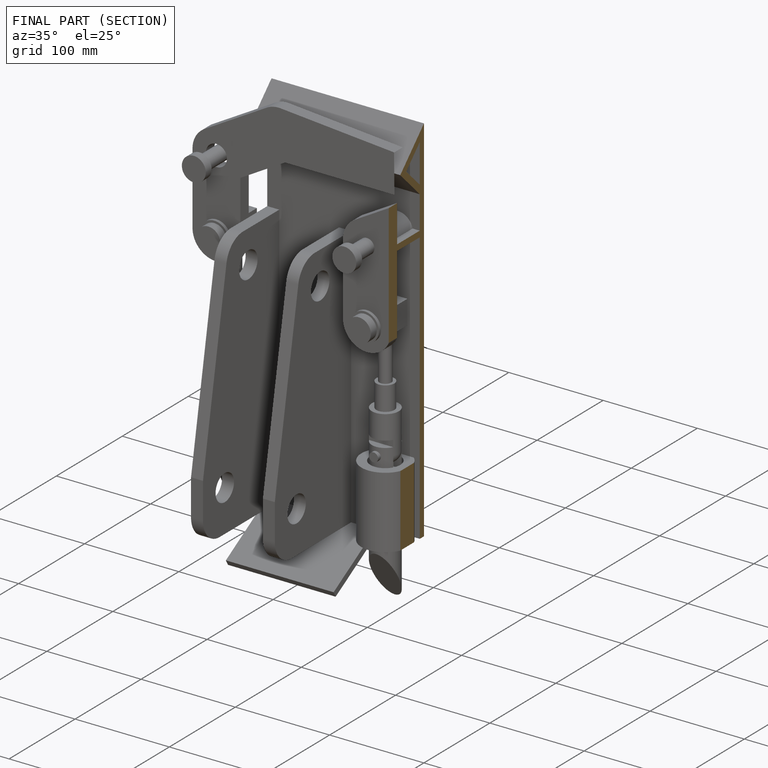
[diagram: finished part — half-section view (interior)]
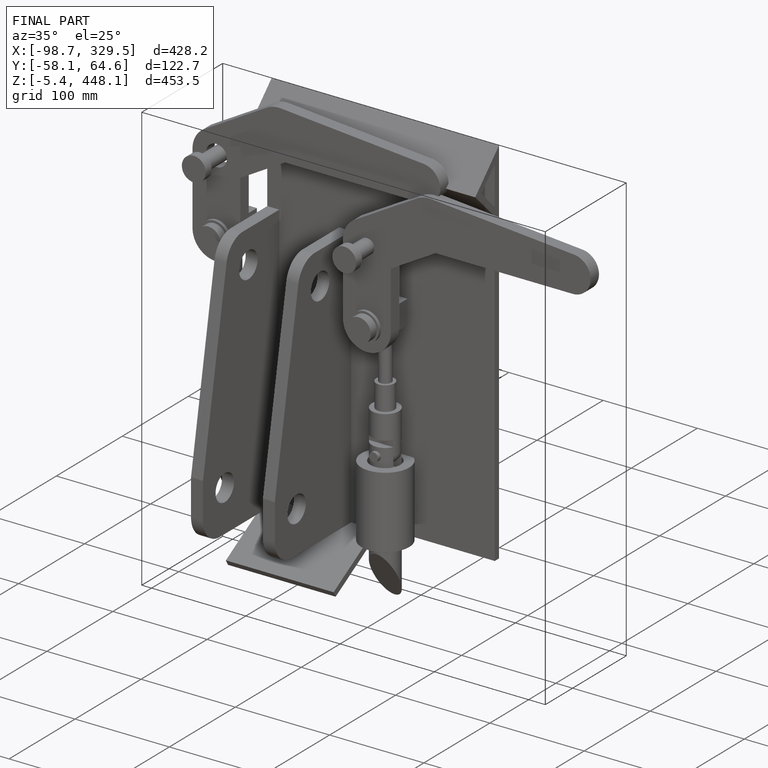
[diagram: finished part — iso view with bounding-box wireframe]
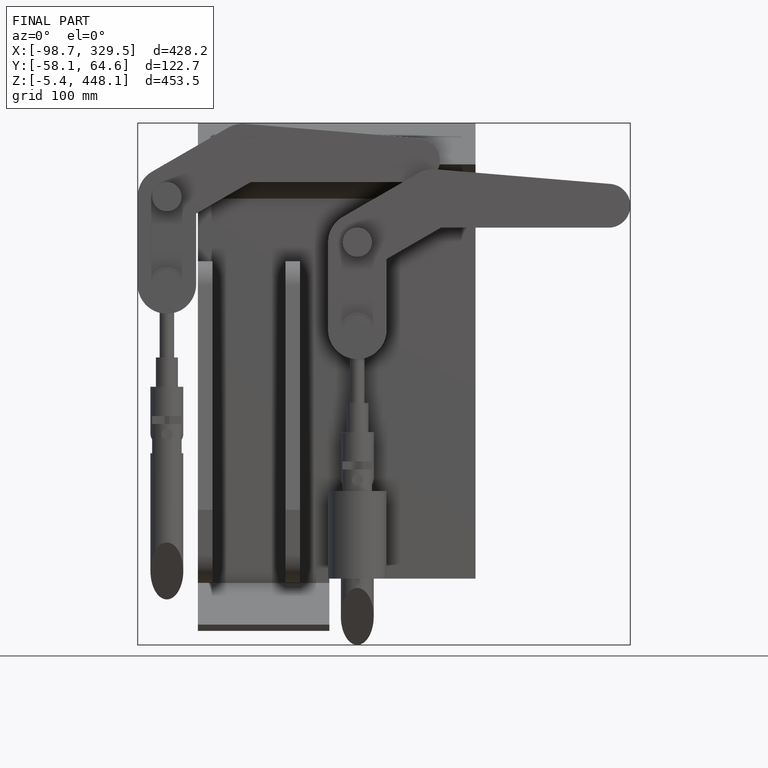
[diagram: finished part — front view with bounding-box wireframe]
